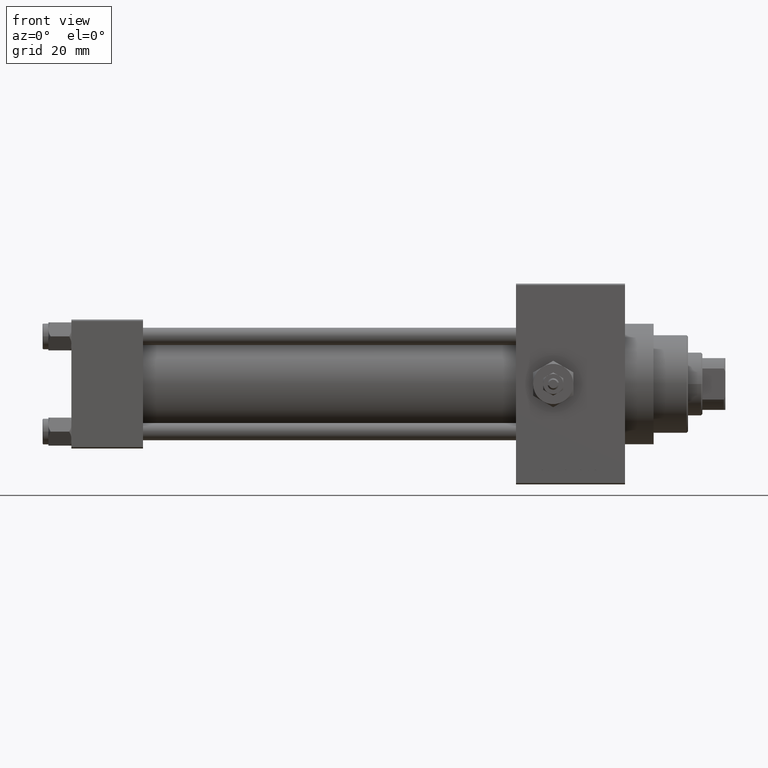
[diagram: clean part render]
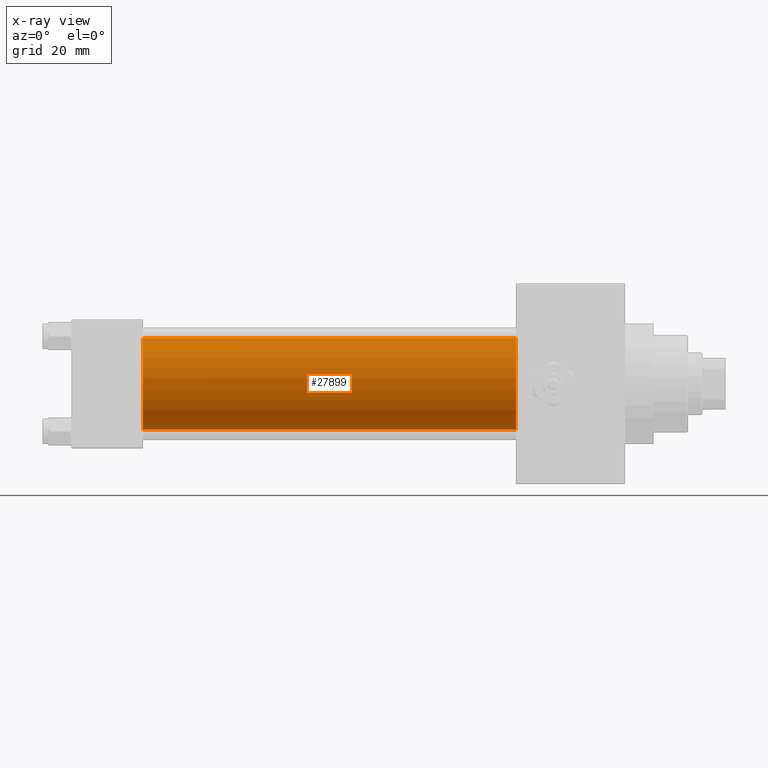
[diagram: x-ray — body ghosted, one internal face saturated and labeled with its STEP entity id]
A machine part, front view, then the same camera in x-ray: the body is ghosted and one INTERNAL B-rep face — a face not visible from any outside direction — is saturated and labeled: STEP entity #27899.
In plain terms, the highlighted cylindrical surface (partial cylindrical patch) has radius 16 mm, axis along (-1, -0, -0).
Its self-contained STEP definition (entity closure, byte-faithful):
#30 = AXIS2_PLACEMENT_3D ( 'NONE', #22118, #33161, #19592 ) ;
#891 = CYLINDRICAL_SURFACE ( 'NONE', #30, 16.00000000000000000 ) ;
#2460 = DIRECTION ( 'NONE',  ( -1.000000000000000000, -0.000000000000000000, -0.000000000000000000 ) ) ;
#3092 = CARTESIAN_POINT ( 'NONE',  ( 25.00000000000000000, -2.602085213965210642E-15, 16.00000000000000000 ) ) ;
#3941 = CARTESIAN_POINT ( 'NONE',  ( 155.0000000000000000, -2.602085213965210642E-15, 0.000000000000000000 ) ) ;
#5798 = LINE ( 'NONE', #27930, #16394 ) ;
#8984 = ORIENTED_EDGE ( 'NONE', *, *, #29886, .T. ) ;
#9607 = CIRCLE ( 'NONE', #37044, 16.00000000000000000 ) ;
#10031 = AXIS2_PLACEMENT_3D ( 'NONE', #30463, #23336, #12034 ) ;
#12034 = DIRECTION ( 'NONE',  ( 0.000000000000000000, 0.000000000000000000, -1.000000000000000000 ) ) ;
#12322 = VECTOR ( 'NONE', #2460, 1000.000000000000000 ) ;
#16227 = EDGE_LOOP ( 'NONE', ( #8984, #18189, #36956, #42887 ) ) ;
#16394 = VECTOR ( 'NONE', #16888, 1000.000000000000000 ) ;
#16888 = DIRECTION ( 'NONE',  ( -1.000000000000000000, -0.000000000000000000, -0.000000000000000000 ) ) ;
#18189 = ORIENTED_EDGE ( 'NONE', *, *, #23778, .T. ) ;
#18959 = DIRECTION ( 'NONE',  ( 0.000000000000000000, 0.000000000000000000, -1.000000000000000000 ) ) ;
#19592 = DIRECTION ( 'NONE',  ( 0.000000000000000000, 0.000000000000000000, 1.000000000000000000 ) ) ;
#20650 = EDGE_CURVE ( 'NONE', #22830, #41168, #39046, .T. ) ;
#22118 = CARTESIAN_POINT ( 'NONE',  ( 155.0000000000000000, -2.602085213965210642E-15, 0.000000000000000000 ) ) ;
#22255 = CARTESIAN_POINT ( 'NONE',  ( 25.00000000000000000, -6.426503353294456087E-16, -16.00000000000000000 ) ) ;
#22830 = VERTEX_POINT ( 'NONE', #3092 ) ;
#23336 = DIRECTION ( 'NONE',  ( 1.000000000000000000, 0.000000000000000000, 0.000000000000000000 ) ) ;
#23778 = EDGE_CURVE ( 'NONE', #40529, #41168, #5798, .T. ) ;
#27899 = ADVANCED_FACE ( 'NONE', ( #40772 ), #891, .F. ) ;
#27930 = CARTESIAN_POINT ( 'NONE',  ( 155.0000000000000000, -6.426503353294456087E-16, -16.00000000000000000 ) ) ;
#29886 = EDGE_CURVE ( 'NONE', #36537, #40529, #9607, .T. ) ;
#30463 = CARTESIAN_POINT ( 'NONE',  ( 25.00000000000000000, -2.602085213965210642E-15, 0.000000000000000000 ) ) ;
#30607 = CARTESIAN_POINT ( 'NONE',  ( 155.0000000000000000, -2.602085213965210642E-15, 16.00000000000000000 ) ) ;
#32423 = CARTESIAN_POINT ( 'NONE',  ( 155.0000000000000000, -2.602085213965210642E-15, 16.00000000000000000 ) ) ;
#33161 = DIRECTION ( 'NONE',  ( -1.000000000000000000, -0.000000000000000000, -0.000000000000000000 ) ) ;
#34363 = CARTESIAN_POINT ( 'NONE',  ( 155.0000000000000000, -6.426503353294456087E-16, -16.00000000000000000 ) ) ;
#36537 = VERTEX_POINT ( 'NONE', #30607 ) ;
#36956 = ORIENTED_EDGE ( 'NONE', *, *, #20650, .F. ) ;
#37044 = AXIS2_PLACEMENT_3D ( 'NONE', #3941, #48437, #18959 ) ;
#39046 = CIRCLE ( 'NONE', #10031, 16.00000000000000000 ) ;
#40529 = VERTEX_POINT ( 'NONE', #34363 ) ;
#40772 = FACE_OUTER_BOUND ( 'NONE', #16227, .T. ) ;
#41168 = VERTEX_POINT ( 'NONE', #22255 ) ;
#42887 = ORIENTED_EDGE ( 'NONE', *, *, #47864, .F. ) ;
#47864 = EDGE_CURVE ( 'NONE', #36537, #22830, #48142, .T. ) ;
#48142 = LINE ( 'NONE', #32423, #12322 ) ;
#48437 = DIRECTION ( 'NONE',  ( 1.000000000000000000, 0.000000000000000000, 0.000000000000000000 ) ) ;